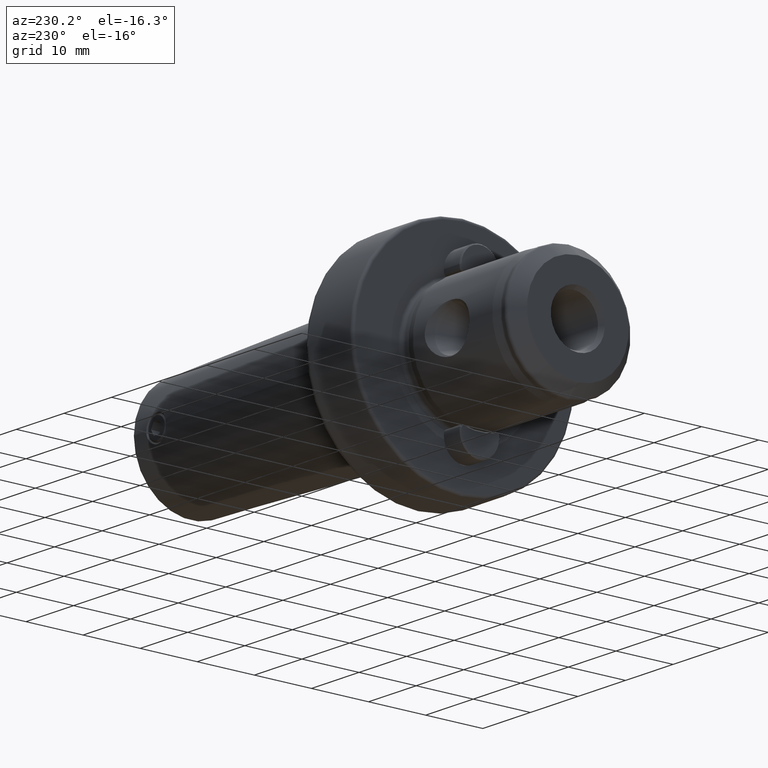
[diagram: clean part render]
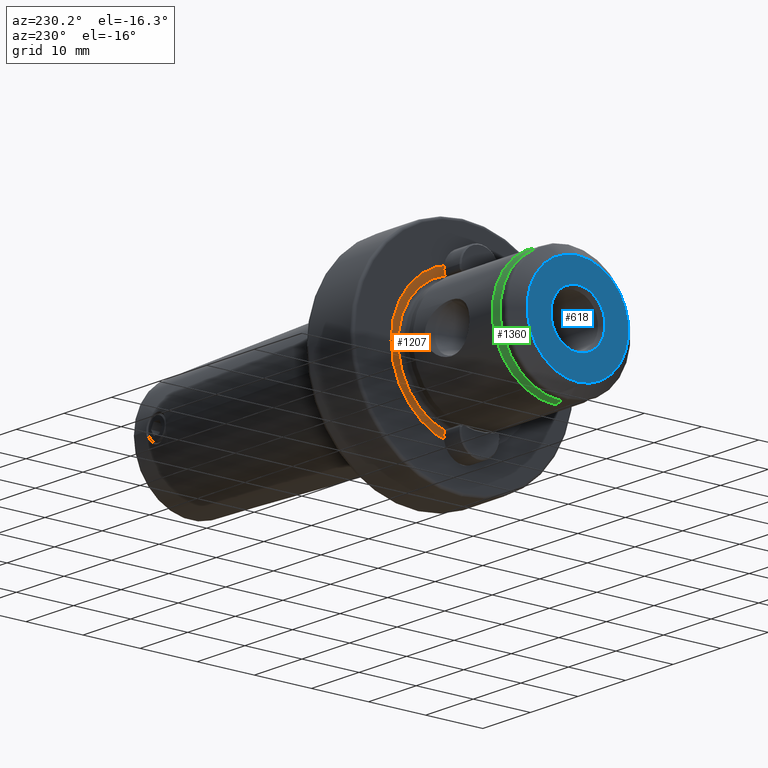
[diagram: same view with three faces highlighted in distinct colors, each labeled with its STEP entity id]
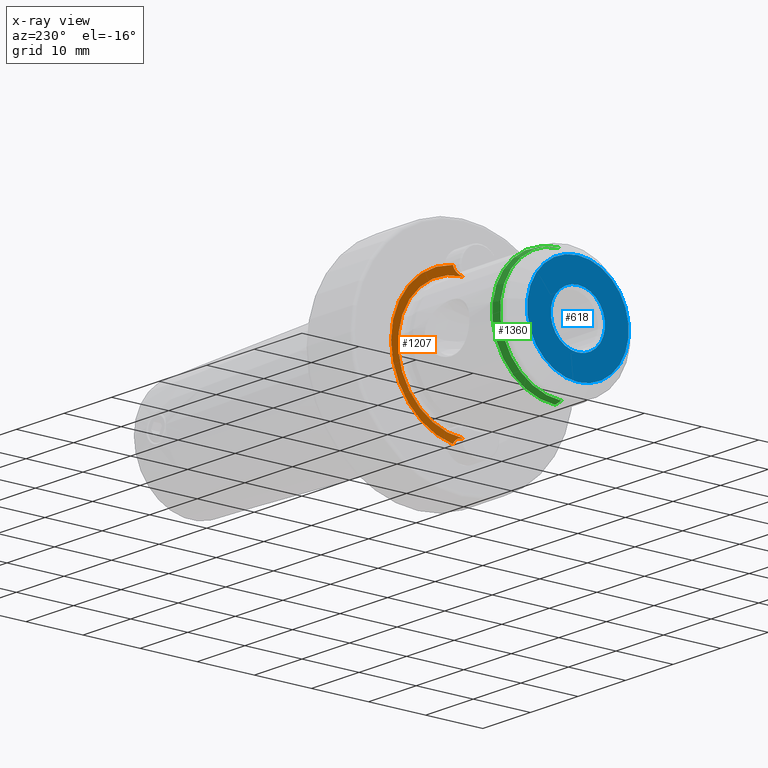
[diagram: x-ray of the same camera — body ghosted, the three highlighted faces saturated]
A machine part, auxiliary view with three faces highlighted in distinct colors.
The next image is the same camera in x-ray (body ghosted, the three faces saturated) — at least one of them is partly hidden behind the body in this view.
Their STEP definitions:

[orange] entity #1207 — the highlighted conical surface has half-angle 82 deg.
#57 = CONICAL_SURFACE ( 'NONE', #1341, 12.71503003164298400, 1.431169986635352700 ) ;
#131 = CARTESIAN_POINT ( 'NONE',  ( 0.1941608412449440100, 0.0000000000000000000, 11.33350386057603900 ) ) ;
#351 = FACE_OUTER_BOUND ( 'NONE', #884, .T. ) ;
#715 = VERTEX_POINT ( 'NONE', #1273 ) ;
#724 = DIRECTION ( 'NONE',  ( -0.1391731009600630200, 0.0000000000000000000, 0.9902680687415705800 ) ) ;
#748 = CARTESIAN_POINT ( 'NONE',  ( 0.0000000000000000000, 0.0000000000000000000, 12.71503003164298400 ) ) ;
#884 = EDGE_LOOP ( 'NONE', ( #4437, #4425, #4328, #4315, #4309, #4255 ) ) ;
#1070 = DIRECTION ( 'NONE',  ( 0.0000000000000000000, 0.0000000000000000000, 1.000000000000000000 ) ) ;
#1089 = DIRECTION ( 'NONE',  ( -1.000000000000000000, -0.0000000000000000000, -0.0000000000000000000 ) ) ;
#1098 = CARTESIAN_POINT ( 'NONE',  ( 0.1941608412449440100, 0.0000000000000000000, 0.0000000000000000000 ) ) ;
#1207 = ADVANCED_FACE ( 'NONE', ( #351 ), #57, .F. ) ;
#1249 = DIRECTION ( 'NONE',  ( 0.0000000000000000000, 0.0000000000000000000, 1.000000000000000000 ) ) ;
#1257 = DIRECTION ( 'NONE',  ( -1.000000000000000000, -0.0000000000000000000, -0.0000000000000000000 ) ) ;
#1272 = CARTESIAN_POINT ( 'NONE',  ( 0.0000000000000000000, 0.0000000000000000000, 0.0000000000000000000 ) ) ;
#1273 = CARTESIAN_POINT ( 'NONE',  ( 0.1866865076355215500, 1.394415565123192000E-015, -11.38668650763552200 ) ) ;
#1341 = AXIS2_PLACEMENT_3D ( 'NONE', #4634, #4605, #4674 ) ;
#1512 = CARTESIAN_POINT ( 'NONE',  ( 0.0000000000000000000, 1.898986079866195900, 12.57242381460541500 ) ) ;
#1524 = CARTESIAN_POINT ( 'NONE',  ( 0.05292354861296078700, 1.726020720289113100, 12.21770717925373600 ) ) ;
#1527 = CARTESIAN_POINT ( 'NONE',  ( 0.1001754430171445400, 1.455709533618613900, 11.91773312428750000 ) ) ;
#1536 = CARTESIAN_POINT ( 'NONE',  ( 0.1507379322057145200, 0.9549765277836004300, 11.60429284120149500 ) ) ;
#1544 = CARTESIAN_POINT ( 'NONE',  ( 0.1640602112271175900, 0.7731591651758311600, 11.52326774325660900 ) ) ;
#1571 = CARTESIAN_POINT ( 'NONE',  ( 0.1819987490836987900, 0.3954541737125080200, 11.41470568467651600 ) ) ;
#1664 = B_SPLINE_CURVE_WITH_KNOTS ( 'NONE', 3,
 ( #1713, #1749, #1571, #1544, #1536, #1527, #1524, #1512 ),
 .UNSPECIFIED., .F., .F.,
 ( 4, 2, 2, 4 ),
 ( 0.002368198991346222700, 0.002959780577323549600, 0.003551362163300876000, 0.004734525335255532400 ),
 .UNSPECIFIED. ) ;
#1713 = CARTESIAN_POINT ( 'NONE',  ( 0.1866865076355215500, 5.135335556049881100E-020, 11.38668650763552200 ) ) ;
#1749 = CARTESIAN_POINT ( 'NONE',  ( 0.1866865076355215500, 0.1963022511332047400, 11.38668650763552000 ) ) ;
#1859 = EDGE_CURVE ( 'NONE', #3129, #715, #3254, .T. ) ;
#1877 = VERTEX_POINT ( 'NONE', #2088 ) ;
#1880 = CARTESIAN_POINT ( 'NONE',  ( 0.1866865076355215500, 1.394415565123192000E-015, -11.38668650763552200 ) ) ;
#1893 = CARTESIAN_POINT ( 'NONE',  ( 0.1866865076355215800, 0.1963339798464275000, -11.38668650763552400 ) ) ;
#1900 = CARTESIAN_POINT ( 'NONE',  ( 0.1819879627110558300, 0.3957144295009550900, -11.41477080846784300 ) ) ;
#1906 = CARTESIAN_POINT ( 'NONE',  ( 0.1640618465562648000, 0.7730915723137096200, -11.52325800065298000 ) ) ;
#1926 = CARTESIAN_POINT ( 'NONE',  ( 0.1507142914969294400, 0.9552302755640718100, -11.60443875410851300 ) ) ;
#1932 = CARTESIAN_POINT ( 'NONE',  ( 0.1001925125694104100, 1.455501216121357000, -11.91762858443751800 ) ) ;
#1934 = EDGE_CURVE ( 'NONE', #4488, #1877, #1664, .T. ) ;
#1997 = CARTESIAN_POINT ( 'NONE',  ( 0.05293171153644242500, 1.725994042127269900, -12.21765246779110800 ) ) ;
#2001 = EDGE_CURVE ( 'NONE', #1877, #3129, #2454, .T. ) ;
#2039 = EDGE_CURVE ( 'NONE', #4271, #3127, #2316, .T. ) ;
#2088 = CARTESIAN_POINT ( 'NONE',  ( 0.0000000000000000000, 1.898986079866195900, 12.57242381460541500 ) ) ;
#2176 = CARTESIAN_POINT ( 'NONE',  ( 0.0000000000000000000, 1.898986079866195900, -12.57242381460541500 ) ) ;
#2316 = CIRCLE ( 'NONE', #2858, 11.33350386057603700 ) ;
#2423 = VECTOR ( 'NONE', #724, 1000.000000000000100 ) ;
#2454 = CIRCLE ( 'NONE', #3000, 12.71503003164298400 ) ;
#2491 = LINE ( 'NONE', #748, #2423 ) ;
#2828 = LINE ( 'NONE', #3086, #3087 ) ;
#2858 = AXIS2_PLACEMENT_3D ( 'NONE', #1098, #1089, #1070 ) ;
#3000 = AXIS2_PLACEMENT_3D ( 'NONE', #1272, #1257, #1249 ) ;
#3046 = DIRECTION ( 'NONE',  ( -0.1391731009600630200, 1.212728620682195700E-016, -0.9902680687415705800 ) ) ;
#3086 = CARTESIAN_POINT ( 'NONE',  ( 0.0000000000000000000, 1.557142082931404900E-015, -12.71503003164298400 ) ) ;
#3087 = VECTOR ( 'NONE', #3046, 1000.000000000000100 ) ;
#3127 = VERTEX_POINT ( 'NONE', #4498 ) ;
#3129 = VERTEX_POINT ( 'NONE', #4505 ) ;
#3254 = B_SPLINE_CURVE_WITH_KNOTS ( 'NONE', 3,
 ( #2176, #1997, #1932, #1926, #1906, #1900, #1893, #1880 ),
 .UNSPECIFIED., .F., .F.,
 ( 4, 2, 2, 4 ),
 ( 1.490173524769365100E-006, 0.001184844582435496800, 0.001776521786890859000, 0.002368198991346221400 ),
 .UNSPECIFIED. ) ;
#3824 = CARTESIAN_POINT ( 'NONE',  ( 0.1866865076355215500, 5.135335556049881100E-020, 11.38668650763552200 ) ) ;
#4255 = ORIENTED_EDGE ( 'NONE', *, *, #1859, .T. ) ;
#4271 = VERTEX_POINT ( 'NONE', #131 ) ;
#4309 = ORIENTED_EDGE ( 'NONE', *, *, #2001, .T. ) ;
#4315 = ORIENTED_EDGE ( 'NONE', *, *, #1934, .T. ) ;
#4328 = ORIENTED_EDGE ( 'NONE', *, *, #4773, .T. ) ;
#4425 = ORIENTED_EDGE ( 'NONE', *, *, #2039, .F. ) ;
#4437 = ORIENTED_EDGE ( 'NONE', *, *, #4531, .F. ) ;
#4488 = VERTEX_POINT ( 'NONE', #3824 ) ;
#4498 = CARTESIAN_POINT ( 'NONE',  ( 0.1941608412449440100, 1.387953922597861600E-015, -11.33350386057603900 ) ) ;
#4505 = CARTESIAN_POINT ( 'NONE',  ( 0.0000000000000000000, 1.898986079866195900, -12.57242381460541500 ) ) ;
#4531 = EDGE_CURVE ( 'NONE', #3127, #715, #2828, .T. ) ;
#4605 = DIRECTION ( 'NONE',  ( -1.000000000000000000, -0.0000000000000000000, -0.0000000000000000000 ) ) ;
#4634 = CARTESIAN_POINT ( 'NONE',  ( 0.0000000000000000000, 0.0000000000000000000, 0.0000000000000000000 ) ) ;
#4674 = DIRECTION ( 'NONE',  ( 0.0000000000000000000, 0.0000000000000000000, 1.000000000000000000 ) ) ;
#4773 = EDGE_CURVE ( 'NONE', #4271, #4488, #2491, .T. ) ;

[blue] entity #618 — the highlighted planar face has unit normal (1, 0, 0).
#157 = EDGE_CURVE ( 'NONE', #3301, #1771, #3272, .T. ) ;
#488 = DIRECTION ( 'NONE',  ( 0.0000000000000000000, 0.0000000000000000000, 1.000000000000000000 ) ) ;
#500 = DIRECTION ( 'NONE',  ( -1.000000000000000000, -0.0000000000000000000, -0.0000000000000000000 ) ) ;
#506 = CARTESIAN_POINT ( 'NONE',  ( -24.00000000000000000, 0.0000000000000000000, 0.0000000000000000000 ) ) ;
#524 = AXIS2_PLACEMENT_3D ( 'NONE', #4112, #4108, #4021 ) ;
#590 = CIRCLE ( 'NONE', #2144, 8.900000000000007500 ) ;
#618 = ADVANCED_FACE ( 'NONE', ( #1342, #1278 ), #1842, .F. ) ;
#907 = CARTESIAN_POINT ( 'NONE',  ( -24.00000000000000000, 1.201639608868524000E-015, 8.900000000000007500 ) ) ;
#1023 = EDGE_CURVE ( 'NONE', #1771, #3301, #590, .T. ) ;
#1195 = VERTEX_POINT ( 'NONE', #4683 ) ;
#1278 = FACE_OUTER_BOUND ( 'NONE', #4442, .T. ) ;
#1335 = ORIENTED_EDGE ( 'NONE', *, *, #4633, .F. ) ;
#1342 = FACE_BOUND ( 'NONE', #1759, .T. ) ;
#1521 = VERTEX_POINT ( 'NONE', #5041 ) ;
#1619 = EDGE_CURVE ( 'NONE', #1195, #1521, #3729, .T. ) ;
#1622 = DIRECTION ( 'NONE',  ( 0.0000000000000000000, 0.0000000000000000000, 1.000000000000000000 ) ) ;
#1637 = DIRECTION ( 'NONE',  ( -1.000000000000000000, -0.0000000000000000000, -0.0000000000000000000 ) ) ;
#1672 = CARTESIAN_POINT ( 'NONE',  ( -24.00000000000000000, 0.0000000000000000000, 0.0000000000000000000 ) ) ;
#1726 = DIRECTION ( 'NONE',  ( 0.0000000000000000000, 0.0000000000000000000, -1.000000000000000000 ) ) ;
#1730 = DIRECTION ( 'NONE',  ( 1.000000000000000000, 0.0000000000000000000, 0.0000000000000000000 ) ) ;
#1759 = EDGE_LOOP ( 'NONE', ( #1335, #2727 ) ) ;
#1771 = VERTEX_POINT ( 'NONE', #2319 ) ;
#1814 = CARTESIAN_POINT ( 'NONE',  ( -24.00000000000000000, 0.0000000000000000000, -4.749999999999999100 ) ) ;
#1842 = PLANE ( 'NONE',  #3053 ) ;
#2144 = AXIS2_PLACEMENT_3D ( 'NONE', #506, #500, #488 ) ;
#2319 = CARTESIAN_POINT ( 'NONE',  ( -24.00000000000000000, 0.0000000000000000000, -8.900000000000007500 ) ) ;
#2600 = ORIENTED_EDGE ( 'NONE', *, *, #157, .T. ) ;
#2694 = CIRCLE ( 'NONE', #4576, 4.749999999999999100 ) ;
#2720 = ORIENTED_EDGE ( 'NONE', *, *, #1023, .T. ) ;
#2727 = ORIENTED_EDGE ( 'NONE', *, *, #1619, .F. ) ;
#3053 = AXIS2_PLACEMENT_3D ( 'NONE', #1814, #1730, #1726 ) ;
#3272 = CIRCLE ( 'NONE', #524, 8.900000000000007500 ) ;
#3301 = VERTEX_POINT ( 'NONE', #907 ) ;
#3729 = CIRCLE ( 'NONE', #4738, 4.749999999999999100 ) ;
#3922 = DIRECTION ( 'NONE',  ( 0.0000000000000000000, 0.0000000000000000000, 1.000000000000000000 ) ) ;
#3929 = DIRECTION ( 'NONE',  ( -1.000000000000000000, -0.0000000000000000000, -0.0000000000000000000 ) ) ;
#3934 = CARTESIAN_POINT ( 'NONE',  ( -24.00000000000000000, 0.0000000000000000000, 0.0000000000000000000 ) ) ;
#4021 = DIRECTION ( 'NONE',  ( 0.0000000000000000000, 0.0000000000000000000, 1.000000000000000000 ) ) ;
#4108 = DIRECTION ( 'NONE',  ( -1.000000000000000000, -0.0000000000000000000, -0.0000000000000000000 ) ) ;
#4112 = CARTESIAN_POINT ( 'NONE',  ( -24.00000000000000000, 0.0000000000000000000, 0.0000000000000000000 ) ) ;
#4442 = EDGE_LOOP ( 'NONE', ( #2720, #2600 ) ) ;
#4576 = AXIS2_PLACEMENT_3D ( 'NONE', #1672, #1637, #1622 ) ;
#4633 = EDGE_CURVE ( 'NONE', #1521, #1195, #2694, .T. ) ;
#4683 = CARTESIAN_POINT ( 'NONE',  ( -24.00000000000000000, 5.817072295949926400E-016, -4.749999999999999100 ) ) ;
#4738 = AXIS2_PLACEMENT_3D ( 'NONE', #3934, #3929, #3922 ) ;
#5041 = CARTESIAN_POINT ( 'NONE',  ( -24.00000000000000000, 0.0000000000000000000, 4.749999999999999100 ) ) ;

[green] entity #1360 — the highlighted conical surface has half-angle 11.139 deg.
#255 = VECTOR ( 'NONE', #4214, 1000.000000000000000 ) ;
#396 = LINE ( 'NONE', #4222, #255 ) ;
#558 = AXIS2_PLACEMENT_3D ( 'NONE', #3206, #3226, #3290 ) ;
#564 = VECTOR ( 'NONE', #3320, 1000.000000000000000 ) ;
#596 = AXIS2_PLACEMENT_3D ( 'NONE', #2545, #3202, #2739 ) ;
#620 = LINE ( 'NONE', #3310, #564 ) ;
#674 = CIRCLE ( 'NONE', #558, 10.73507215807946700 ) ;
#722 = ORIENTED_EDGE ( 'NONE', *, *, #3001, .F. ) ;
#728 = ORIENTED_EDGE ( 'NONE', *, *, #2693, .T. ) ;
#767 = ORIENTED_EDGE ( 'NONE', *, *, #2831, .T. ) ;
#782 = ORIENTED_EDGE ( 'NONE', *, *, #2805, .F. ) ;
#804 = AXIS2_PLACEMENT_3D ( 'NONE', #2701, #2738, #2746 ) ;
#904 = CIRCLE ( 'NONE', #804, 10.99999999999999800 ) ;
#1360 = ADVANCED_FACE ( 'NONE', ( #4774 ), #4936, .T. ) ;
#1646 = VERTEX_POINT ( 'NONE', #3756 ) ;
#1698 = CARTESIAN_POINT ( 'NONE',  ( -20.54544165186578700, 0.0000000000000000000, 10.73507215807946800 ) ) ;
#1732 = VERTEX_POINT ( 'NONE', #3060 ) ;
#2545 = CARTESIAN_POINT ( 'NONE',  ( -19.20000000000000300, 0.0000000000000000000, 0.0000000000000000000 ) ) ;
#2693 = EDGE_CURVE ( 'NONE', #1732, #1646, #904, .T. ) ;
#2701 = CARTESIAN_POINT ( 'NONE',  ( -19.20000000000000300, 0.0000000000000000000, 0.0000000000000000000 ) ) ;
#2738 = DIRECTION ( 'NONE',  ( -1.000000000000000000, -0.0000000000000000000, -0.0000000000000000000 ) ) ;
#2739 = DIRECTION ( 'NONE',  ( 0.0000000000000000000, 0.0000000000000000000, -1.000000000000000000 ) ) ;
#2746 = DIRECTION ( 'NONE',  ( 0.0000000000000000000, 0.0000000000000000000, 1.000000000000000000 ) ) ;
#2805 = EDGE_CURVE ( 'NONE', #3495, #3917, #674, .T. ) ;
#2831 = EDGE_CURVE ( 'NONE', #3495, #1732, #620, .T. ) ;
#2835 = CARTESIAN_POINT ( 'NONE',  ( -20.54544165186578700, 1.314667175700788800E-015, -10.73507215807946800 ) ) ;
#3001 = EDGE_CURVE ( 'NONE', #3917, #1646, #396, .T. ) ;
#3060 = CARTESIAN_POINT ( 'NONE',  ( -19.20000000000000300, 1.347111479062088200E-015, 10.99999999999999800 ) ) ;
#3202 = DIRECTION ( 'NONE',  ( 1.000000000000000000, 0.0000000000000000000, 0.0000000000000000000 ) ) ;
#3206 = CARTESIAN_POINT ( 'NONE',  ( -20.54544165186578700, 0.0000000000000000000, 0.0000000000000000000 ) ) ;
#3226 = DIRECTION ( 'NONE',  ( -1.000000000000000000, -0.0000000000000000000, -0.0000000000000000000 ) ) ;
#3290 = DIRECTION ( 'NONE',  ( 0.0000000000000000000, 0.0000000000000000000, 1.000000000000000000 ) ) ;
#3310 = CARTESIAN_POINT ( 'NONE',  ( -19.20000000000000300, 1.347111479062088200E-015, 10.99999999999999800 ) ) ;
#3320 = DIRECTION ( 'NONE',  ( 0.9811598024006641400, 2.365992329050868800E-017, 0.1931979351677695900 ) ) ;
#3348 = EDGE_LOOP ( 'NONE', ( #782, #767, #728, #722 ) ) ;
#3495 = VERTEX_POINT ( 'NONE', #1698 ) ;
#3756 = CARTESIAN_POINT ( 'NONE',  ( -19.20000000000000300, 0.0000000000000000000, -10.99999999999999800 ) ) ;
#3917 = VERTEX_POINT ( 'NONE', #2835 ) ;
#4214 = DIRECTION ( 'NONE',  ( 0.9811598024006641400, 0.0000000000000000000, -0.1931979351677695900 ) ) ;
#4222 = CARTESIAN_POINT ( 'NONE',  ( -19.20000000000000300, 0.0000000000000000000, -10.99999999999999800 ) ) ;
#4774 = FACE_OUTER_BOUND ( 'NONE', #3348, .T. ) ;
#4936 = CONICAL_SURFACE ( 'NONE', #596, 10.99999999999999800, 0.1944204488700961600 ) ;